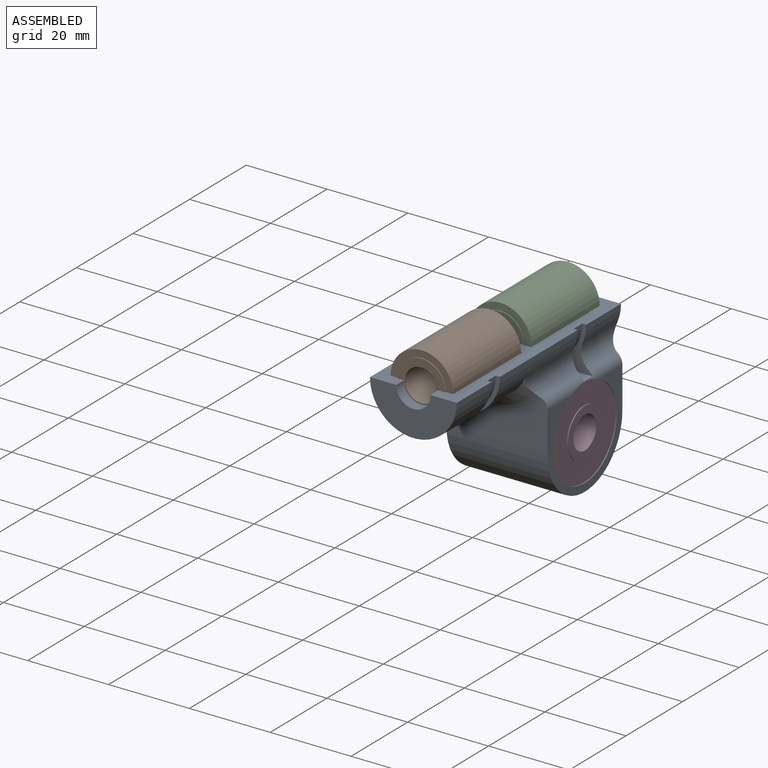
[diagram: assembled view]
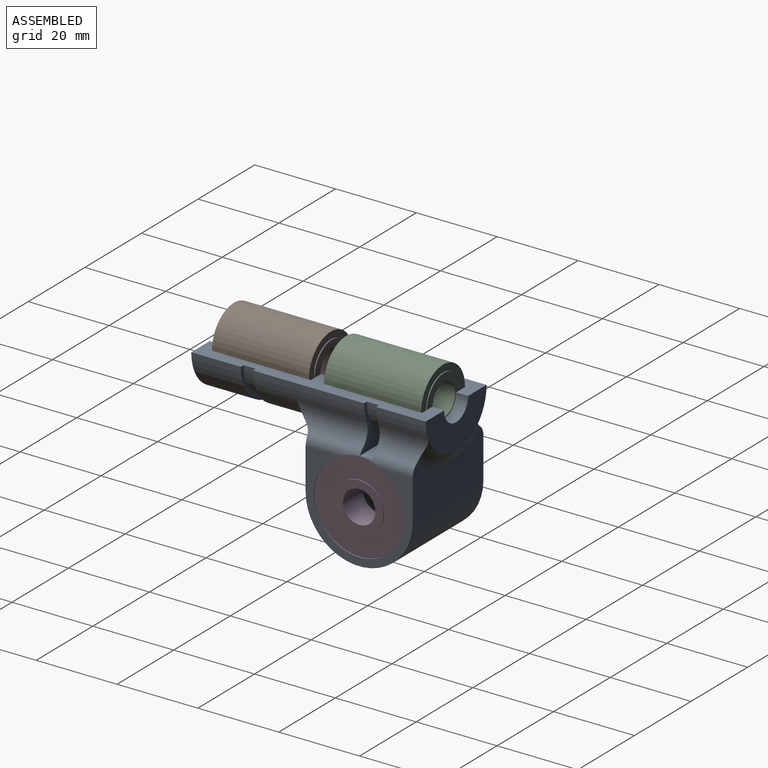
[diagram: assembled view, second angle]
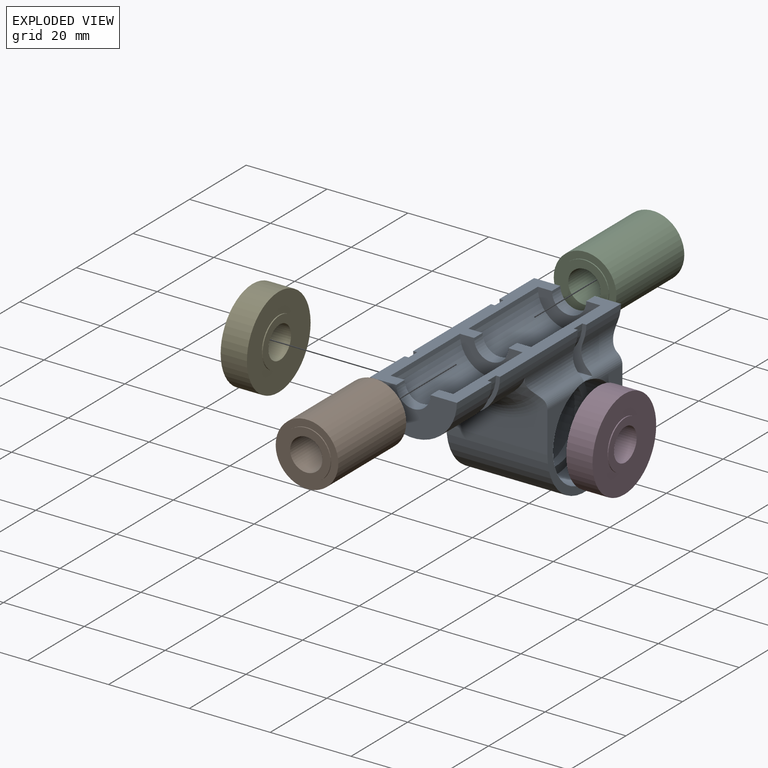
[diagram: exploded view]
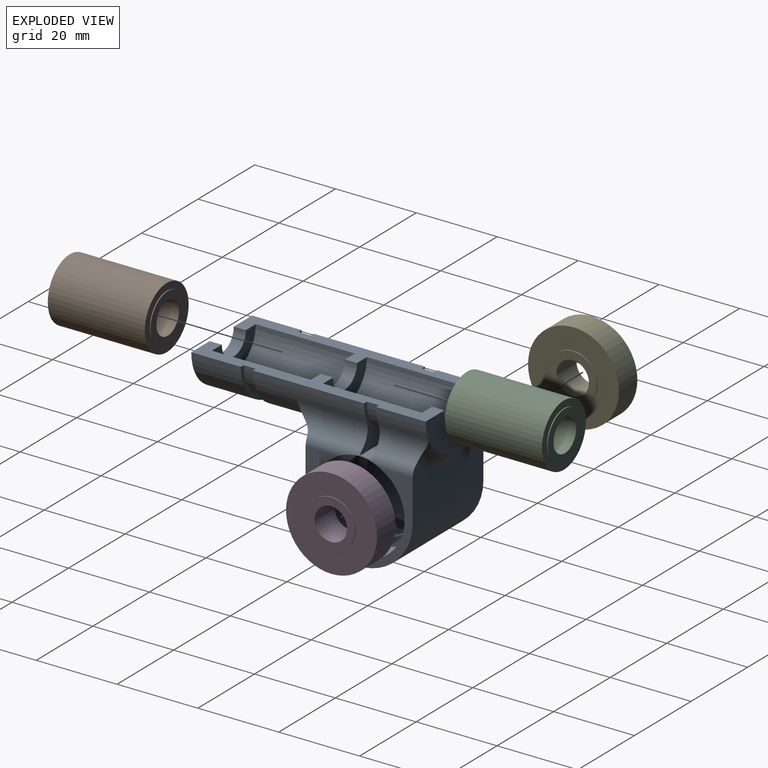
[diagram: exploded view, second angle]
ASSEMBLY  parts=5 mates=4
PART A: 48 faces, bbox 33.6x61x35.8 mm
  f0: cylinder r=10.75mm len=12.25mm, axis (0,1,0), area 52.9mm2, adj f16,f18,f23,f45
  f1: cylinder r=9.25mm len=18.5mm, axis (-1,0,0), area 116.2mm2, adj f33,f35
  f2: cylinder r=11.25mm len=22.5mm, axis (-1,0,0), area 493.5mm2, adj f30,f33,f46
  f3: cylinder r=9.75mm len=19.5mm, axis (0,1,0), area 91.9mm2, adj f4,f22,f23,f24
  f4: plane 21.5x10.75mm, normal (0,1,0), area 32.2mm2, adj f3,f5,f23,f24
  f5: cylinder r=10.75mm len=21.5mm, axis (0,1,0), area 413.7mm2, adj f4,f6,f23,f24
  f6: plane 21.5x10.75mm, normal (0,-1,0), area 153.2mm2, adj f5,f7,f23,f24
  f7: cylinder r=4.25mm len=8.5mm, axis (0,1,0), area 40.1mm2, adj f6,f8,f23,f24
  f8: plane 15.5x7.75mm, normal (0,1,0), area 66mm2, adj f7,f9,f23,f24
  f9: cylinder r=7.75mm len=24.5mm, axis (0,1,0), area 596.5mm2, adj f8,f10,f23,f24
  f10: plane 15.5x7.75mm, normal (0,-1,0), area 66mm2, adj f9,f11,f23,f24
  f11: cylinder r=4.25mm len=8.5mm, axis (0,1,0), area 40.1mm2, adj f10,f12,f23,f24
  f12: plane 15.5x7.75mm, normal (0,1,0), area 66mm2, adj f11,f13,f23,f24
  f13: cylinder r=7.75mm len=24.5mm, axis (0,1,0), area 596.5mm2, adj f12,f14,f23,f24
  f14: plane 15.5x7.75mm, normal (0,-1,0), area 66mm2, adj f13,f15,f23,f24
  f15: cylinder r=4.25mm len=8.5mm, axis (0,1,0), area 40.1mm2, adj f14,f16,f23,f24
  f16: plane 21.5x10.75mm, normal (0,1,0), area 153.2mm2, adj f0,f15,f17,f23,f24,f38
  f17: cylinder r=10.75mm len=12.25mm, axis (0,1,0), area 52.9mm2, adj f16,f18,f24,f43
  f18: plane 24.45x11.15mm, normal (0,-1,0), area 80.7mm2, adj f0,f17,f19,f23,f24,f27,f43,f45
  f19: cylinder r=9.75mm len=19.5mm, axis (0,1,0), area 91.9mm2, adj f18,f20,f23,f24
  f20: plane 24.45x11.15mm, normal (0,1,0), area 80.7mm2, adj f19,f21,f23,f24,f27,f42,f44,f46
  f21: cylinder r=10.75mm len=27.5mm, axis (0,1,0), area 495.1mm2, adj f20,f22,f23,f24,f39,f42,f44
  f22: plane 21.5x10.75mm, normal (0,-1,0), area 32.2mm2, adj f3,f21,f23,f24
  f23: plane 58x6.5mm, normal (0,0,1), area 199.5mm2, adj f0,f3,f4,f5,f6,f7,f8,f9
  f24: plane 58x6.5mm, normal (0,0,1), area 199.5mm2, adj f3,f4,f5,f6,f7,f8,f9,f10
  f25: plane 25x11.07mm, normal (0,-1,0), area 184.6mm2, adj f29,f30,f37,f40,f46,f47
  f26: plane 25x12.68mm, normal (0,1,0), area 237.8mm2, adj f29,f30,f37,f41,f43,f45,f46,f47
  f27: plane 24.45x3mm, normal (0,0,1), area 73.3mm2, adj f18,f20,f46,f47
  f28: cylinder r=11.25mm len=22.5mm, axis (-1,0,0), area 493.5mm2, adj f29,f32,f47
  f29: plane 26.5x23.34mm, normal (1,0,0), area 153.4mm2, adj f25,f26,f28,f37,f47
  f30: plane 26.5x23.34mm, normal (-1,0,0), area 153.4mm2, adj f2,f25,f26,f37,f46
  f31: cylinder r=9.25mm len=18.5mm, axis (-1,0,0), area 116.2mm2, adj f32,f36
  f32: plane 22.5x22.5mm, normal (1,0,0), area 128.8mm2, adj f28,f31
  f33: plane 22.5x22.5mm, normal (-1,0,0), area 128.8mm2, adj f1,f2
  f34: cylinder r=11.25mm len=22.5mm, axis (1,0,0), area 494.8mm2, adj f35,f36
  f35: plane 22.5x22.5mm, normal (1,0,0), area 128.8mm2, adj f1,f34
  f36: plane 22.5x22.5mm, normal (-1,0,0), area 128.8mm2, adj f31,f34
  f37: cylinder r=13.25mm len=26.5mm, axis (1,0,0), area 1040.7mm2, adj f25,f26,f29,f30
  f38: cone r=12.75mm half-angle=45deg, axis (0,-1,0), area 17.6mm2, adj f16,f41,f43,f45
  f39: cone r=10.75mm half-angle=45deg, axis (0,1,0), area 81.2mm2, adj f21,f40,f42,f44
  f40: torus R=16.82mm, axis (0,1,0), area 99.4mm2, adj f25,f39,f42,f44,f46,f47
  f41: torus R=14.82mm, axis (0,1,0), area 90.6mm2, adj f26,f38,f43,f45
  f42: cylinder r=5mm len=17.25mm, axis (0,1,0), area 101.6mm2, adj f20,f21,f39,f40,f46
  f43: cylinder r=5mm len=12.25mm, axis (0,1,0), area 72.3mm2, adj f17,f18,f26,f38,f41,f46
  f44: cylinder r=5mm len=17.25mm, axis (0,1,0), area 101.6mm2, adj f20,f21,f39,f40,f47
  f45: cylinder r=5mm len=12.25mm, axis (0,1,0), area 72.3mm2, adj f0,f18,f26,f38,f41,f47
  f46: cylinder r=3mm len=26.78mm, axis (0,1,0), area 59.3mm2, adj f2,f18,f20,f25,f26,f27,f30,f40
  f47: cylinder r=3mm len=26.78mm, axis (0,1,0), area 59.3mm2, adj f18,f20,f25,f26,f27,f28,f29,f40
PART B: 8 faces, bbox 15.5x15.5x24.5 mm
  f0: cylinder r=6mm len=12mm, axis (0,0,-1), area 9.4mm2, adj f4,f7
  f1: cylinder r=4mm len=24.5mm, axis (0,0,-1), area 615.8mm2, adj f3,f4
  f2: cylinder r=6mm len=12mm, axis (0,0,-1), area 9.4mm2, adj f3,f6
  f3: plane 12x12mm, normal (0,0,1), area 62.8mm2, adj f1,f2
  f4: plane 12x12mm, normal (0,0,-1), area 62.8mm2, adj f0,f1
  f5: cylinder r=7.75mm len=24mm, axis (0,0,-1), area 1168.7mm2, adj f6,f7
  f6: plane 15.5x15.5mm, normal (0,0,1), area 75.6mm2, adj f2,f5
  f7: plane 15.5x15.5mm, normal (0,0,-1), area 75.6mm2, adj f0,f5
PART C: same geometry as B
PART D: 8 faces, bbox 22.5x22.5x7 mm
  f0: cylinder r=6mm len=12mm, axis (0,0,-1), area 9.4mm2, adj f4,f7
  f1: cylinder r=4mm len=8mm, axis (0,0,-1), area 175.9mm2, adj f3,f4
  f2: cylinder r=6mm len=12mm, axis (0,0,-1), area 9.4mm2, adj f3,f6
  f3: plane 12x12mm, normal (0,0,1), area 62.8mm2, adj f1,f2
  f4: plane 12x12mm, normal (0,0,-1), area 62.8mm2, adj f0,f1
  f5: cylinder r=11.25mm len=22.5mm, axis (0,0,-1), area 459.5mm2, adj f6,f7
  f6: plane 22.5x22.5mm, normal (0,0,1), area 284.5mm2, adj f2,f5
  f7: plane 22.5x22.5mm, normal (0,0,-1), area 284.5mm2, adj f0,f5
PART E: same geometry as D
PLACE A t=(-5.04,9.11,9.79)mm
PLACE B rot(axis=(-1,0,0),90deg) t=(-5.04,-18.64,9.79)mm
PLACE C rot(axis=(1,0,0),90deg) t=(-5.04,9.11,9.79)mm
PLACE D rot(axis=(0,-1,0),90deg) t=(3.96,9.11,-12.71)mm
PLACE E rot(axis=(0,1,0),90deg) t=(-14.04,9.11,-12.71)mm
MATE fastened C.f0 <-> A.f0  axis (0,1,0) through (-5.04,-3.14,9.79)mm
MATE fastened D.f0 <-> A.f1  axis (1,0,0) through (0.46,9.11,-12.71)mm
MATE fastened B.f0 <-> A.f0  axis (0,-1,0) through (-5.04,-30.64,9.79)mm
MATE fastened E.f0 <-> A.f1  axis (-1,0,0) through (-10.54,9.11,-12.71)mm
